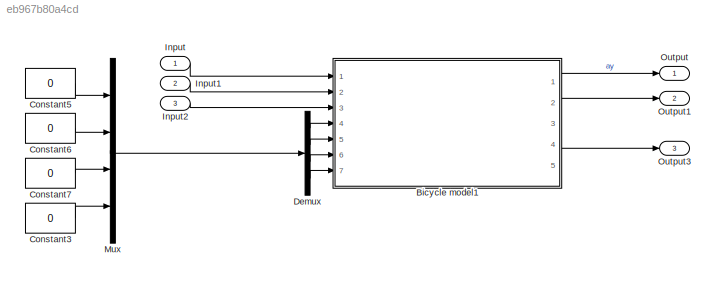
MODEL slx_eb967b80a4cd
KIND model
CONFIG AbsTol = auto
CONFIG EnableMultiTasking = off
CONFIG FixedStep = auto
CONFIG MaxStep = auto
CONFIG MinStep = auto
CONFIG RelTol = 1e-3
CONFIG SampleTimeConstraint = Unconstrained
CONFIG SolverName = VariableStepAuto
CONFIG StartTime = 0.0
CONFIG StopTime = 10
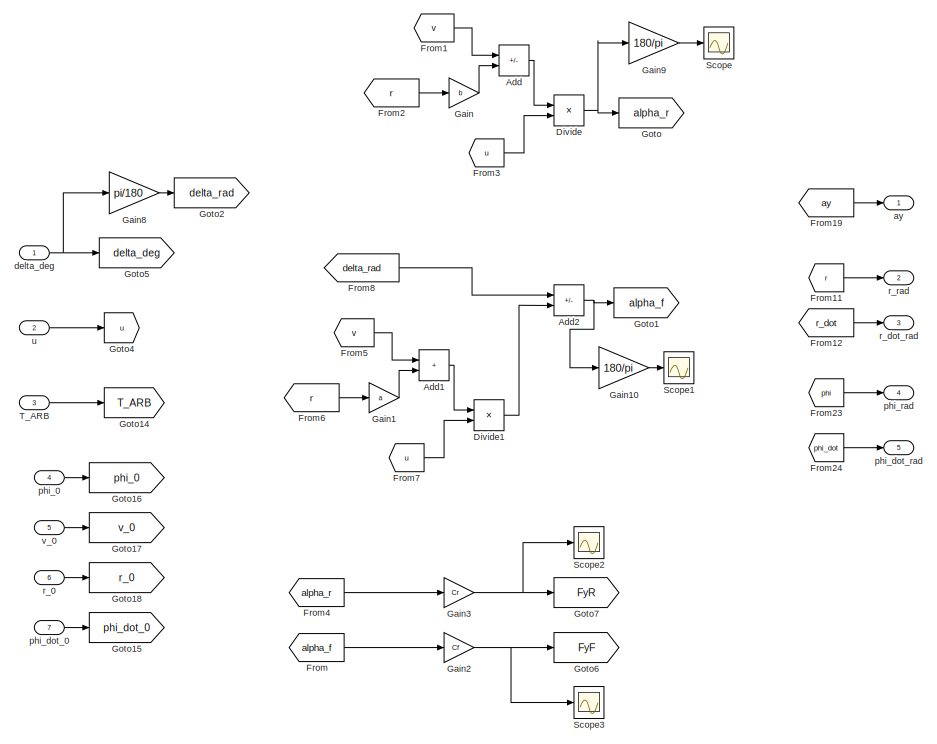
[diagram: Bicycle model1 - part 1/2, top center region]
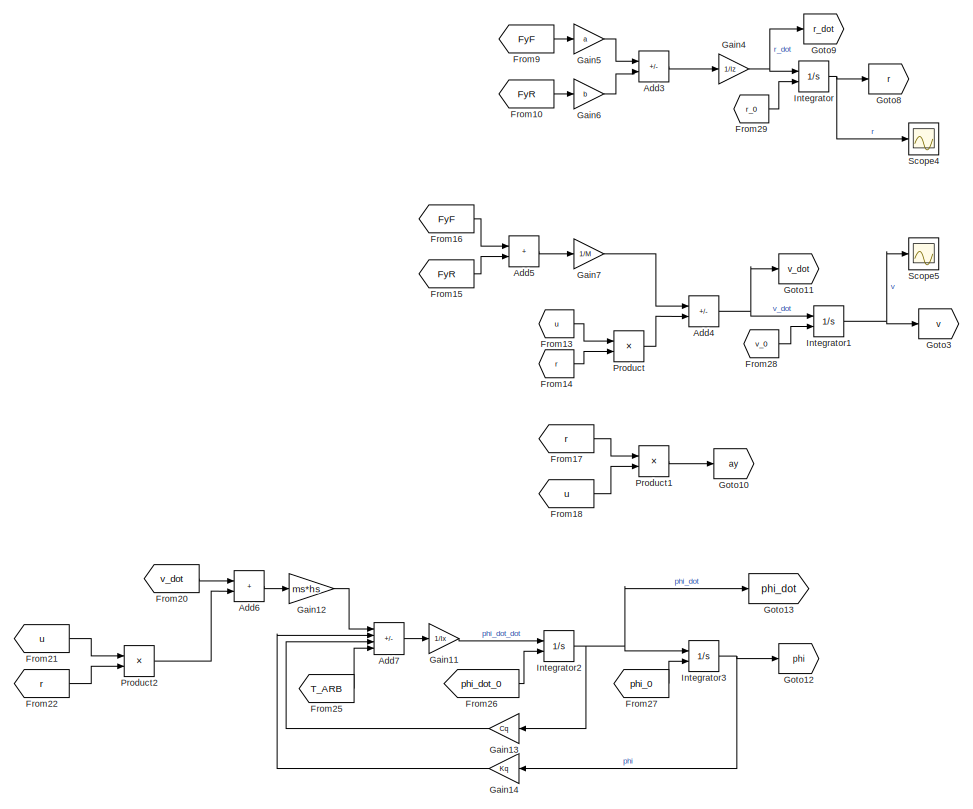
[diagram: Bicycle model1 - part 2/2, bottom center region]
BLOCK [SubSystem] Bicycle model1
  Ports = [7, 5]
  RequestExecContextInheritance = off
BLOCK [Sum] Bicycle model1/Add
  IconShape = rectangular
  Inputs = -+
  Ports = [2, 1]
BLOCK [Sum] Bicycle model1/Add1
  IconShape = rectangular
  Ports = [2, 1]
BLOCK [Sum] Bicycle model1/Add2
  IconShape = rectangular
  Inputs = +-
  Ports = [2, 1]
BLOCK [Sum] Bicycle model1/Add3
  IconShape = rectangular
  Inputs = +-
  Ports = [2, 1]
BLOCK [Sum] Bicycle model1/Add4
  IconShape = rectangular
  Inputs = +-
  Ports = [2, 1]
BLOCK [Sum] Bicycle model1/Add5
  IconShape = rectangular
  Ports = [2, 1]
BLOCK [Sum] Bicycle model1/Add6
  IconShape = rectangular
  Ports = [2, 1]
BLOCK [Sum] Bicycle model1/Add7
  IconShape = rectangular
  Inputs = +---
  Ports = [4, 1]
BLOCK [Product] Bicycle model1/Divide
  Inputs = */
  Ports = [2, 1]
BLOCK [Product] Bicycle model1/Divide1
  Inputs = */
  Ports = [2, 1]
BLOCK [From] Bicycle model1/From
  GotoTag = alpha_f
BLOCK [From] Bicycle model1/From1
  GotoTag = v
BLOCK [From] Bicycle model1/From10
  GotoTag = FyR
BLOCK [From] Bicycle model1/From11
  GotoTag = r
BLOCK [From] Bicycle model1/From12
  GotoTag = r_dot
BLOCK [From] Bicycle model1/From13
  GotoTag = u
BLOCK [From] Bicycle model1/From14
  GotoTag = r
BLOCK [From] Bicycle model1/From15
  GotoTag = FyR
BLOCK [From] Bicycle model1/From16
  GotoTag = FyF
BLOCK [From] Bicycle model1/From17
  GotoTag = r
BLOCK [From] Bicycle model1/From18
  GotoTag = u
BLOCK [From] Bicycle model1/From19
  GotoTag = ay
BLOCK [From] Bicycle model1/From2
  GotoTag = r
BLOCK [From] Bicycle model1/From20
  GotoTag = v_dot
BLOCK [From] Bicycle model1/From21
  GotoTag = u
BLOCK [From] Bicycle model1/From22
  GotoTag = r
BLOCK [From] Bicycle model1/From23
  GotoTag = phi
BLOCK [From] Bicycle model1/From24
  GotoTag = phi_dot
BLOCK [From] Bicycle model1/From25
  GotoTag = T_ARB
BLOCK [From] Bicycle model1/From26
  GotoTag = phi_dot_0
BLOCK [From] Bicycle model1/From27
  GotoTag = phi_0
BLOCK [From] Bicycle model1/From28
  GotoTag = v_0
BLOCK [From] Bicycle model1/From29
  GotoTag = r_0
BLOCK [From] Bicycle model1/From3
  GotoTag = u
BLOCK [From] Bicycle model1/From4
  GotoTag = alpha_r
BLOCK [From] Bicycle model1/From5
  GotoTag = v
BLOCK [From] Bicycle model1/From6
  GotoTag = r
BLOCK [From] Bicycle model1/From7
  GotoTag = u
BLOCK [From] Bicycle model1/From8
  GotoTag = delta_rad
BLOCK [From] Bicycle model1/From9
  GotoTag = FyF
BLOCK [Gain] Bicycle model1/Gain
  Gain = b
BLOCK [Gain] Bicycle model1/Gain1
  Gain = a
BLOCK [Gain] Bicycle model1/Gain10
  Gain = 180/pi
BLOCK [Gain] Bicycle model1/Gain11
  Gain = 1/Ix
BLOCK [Gain] Bicycle model1/Gain12
  Gain = ms*hs
BLOCK [Gain] Bicycle model1/Gain13
  Gain = Cq
  NameLocation = top
BLOCK [Gain] Bicycle model1/Gain14
  Gain = Kq
  NameLocation = top
BLOCK [Gain] Bicycle model1/Gain2
  Gain = Cf
BLOCK [Gain] Bicycle model1/Gain3
  Gain = Cr
BLOCK [Gain] Bicycle model1/Gain4
  Gain = 1/Iz
BLOCK [Gain] Bicycle model1/Gain5
  Gain = a
BLOCK [Gain] Bicycle model1/Gain6
  Gain = b
BLOCK [Gain] Bicycle model1/Gain7
  Gain = 1/M
BLOCK [Gain] Bicycle model1/Gain8
  Gain = pi/180
BLOCK [Gain] Bicycle model1/Gain9
  Gain = 180/pi
BLOCK [Goto] Bicycle model1/Goto
  GotoTag = alpha_r
BLOCK [Goto] Bicycle model1/Goto1
  GotoTag = alpha_f
BLOCK [Goto] Bicycle model1/Goto10
  GotoTag = ay
BLOCK [Goto] Bicycle model1/Goto11
  GotoTag = v_dot
BLOCK [Goto] Bicycle model1/Goto12
  GotoTag = phi
BLOCK [Goto] Bicycle model1/Goto13
  GotoTag = phi_dot
BLOCK [Goto] Bicycle model1/Goto14
  GotoTag = T_ARB
BLOCK [Goto] Bicycle model1/Goto15
  GotoTag = phi_dot_0
BLOCK [Goto] Bicycle model1/Goto16
  GotoTag = phi_0
BLOCK [Goto] Bicycle model1/Goto17
  GotoTag = v_0
BLOCK [Goto] Bicycle model1/Goto18
  GotoTag = r_0
BLOCK [Goto] Bicycle model1/Goto2
  GotoTag = delta_rad
BLOCK [Goto] Bicycle model1/Goto3
  GotoTag = v
BLOCK [Goto] Bicycle model1/Goto4
  GotoTag = u
BLOCK [Goto] Bicycle model1/Goto5
  Commented = on
  GotoTag = delta_deg
BLOCK [Goto] Bicycle model1/Goto6
  GotoTag = FyF
BLOCK [Goto] Bicycle model1/Goto7
  GotoTag = FyR
BLOCK [Goto] Bicycle model1/Goto8
  GotoTag = r
BLOCK [Goto] Bicycle model1/Goto9
  GotoTag = r_dot
BLOCK [Integrator] Bicycle model1/Integrator
  InitialConditionSource = external
  Ports = [2, 1]
BLOCK [Integrator] Bicycle model1/Integrator1
  InitialConditionSource = external
  Ports = [2, 1]
BLOCK [Integrator] Bicycle model1/Integrator2
  InitialConditionSource = external
  Ports = [2, 1]
BLOCK [Integrator] Bicycle model1/Integrator3
  InitialConditionSource = external
  Ports = [2, 1]
BLOCK [Product] Bicycle model1/Product
  Ports = [2, 1]
BLOCK [Product] Bicycle model1/Product1
  Ports = [2, 1]
BLOCK [Product] Bicycle model1/Product2
  Ports = [2, 1]
BLOCK [Scope] Bicycle model1/Scope
  Floating = off
  NumInputPorts = 1
  Ports = [1]
  ScopeSpecificationString = Simulink.scopes.TimeScopeBlockCfg('CurrentConfiguration', extmgr.ConfigurationSet(extmgr.Configuration('Core','General UI',true,'FigureColor',[1 1 1]),extmgr.Configuration('Core','Source UI',true),extmgr.Configuration('Sources','WiredSimulink',true,'DataLoggingVariableName','ScopeData2'),extmgr.Configuration('Visuals','Time Domain',true,'SerializedDisplays',{struct('MinYLimReal','-26.98488','MaxYL...<+1555ch>
BLOCK [Scope] Bicycle model1/Scope1
  Floating = off
  NumInputPorts = 1
  Ports = [1]
  ScopeSpecificationString = Simulink.scopes.TimeScopeBlockCfg('CurrentConfiguration', extmgr.ConfigurationSet(extmgr.Configuration('Core','General UI',true,'FigureColor',[1 1 1]),extmgr.Configuration('Core','Source UI',true),extmgr.Configuration('Sources','WiredSimulink',true,'DataLoggingVariableName','ScopeData3'),extmgr.Configuration('Visuals','Time Domain',true,'SerializedDisplays',{struct('MinYLimReal','-30.65544','MaxYL...<+1542ch>
BLOCK [Scope] Bicycle model1/Scope2
  Floating = off
  NumInputPorts = 1
  Ports = [1]
  ScopeSpecificationString = Simulink.scopes.TimeScopeBlockCfg('CurrentConfiguration', extmgr.ConfigurationSet(extmgr.Configuration('Core','General UI',true,'FigureColor',[1 1 1]),extmgr.Configuration('Core','Source UI',true),extmgr.Configuration('Sources','WiredSimulink',true,'DataLoggingVariableName','ScopeData4'),extmgr.Configuration('Visuals','Time Domain',true,'SerializedDisplays',{struct('MinYLimReal','-2248.73985','Max...<+1577ch>
BLOCK [Scope] Bicycle model1/Scope3
  Floating = off
  NumInputPorts = 1
  Ports = [1]
  ScopeSpecificationString = Simulink.scopes.TimeScopeBlockCfg('CurrentConfiguration', extmgr.ConfigurationSet(extmgr.Configuration('Core','General UI',true,'FigureColor',[1 1 1]),extmgr.Configuration('Core','Source UI',true),extmgr.Configuration('Sources','WiredSimulink',true,'DataLoggingVariableName','ScopeData5'),extmgr.Configuration('Visuals','Time Domain',true,'SerializedDisplays',{struct('MinYLimReal','-2554.61988','Max...<+1577ch>
BLOCK [Scope] Bicycle model1/Scope4
  Floating = off
  NumInputPorts = 1
  Ports = [1]
  ScopeSpecificationString = Simulink.scopes.TimeScopeBlockCfg('CurrentConfiguration', extmgr.ConfigurationSet(extmgr.Configuration('Core','General UI',true,'FigureColor',[1 1 1]),extmgr.Configuration('Core','Source UI',true),extmgr.Configuration('Sources','WiredSimulink',true,'DataLoggingVariableName','ScopeData6'),extmgr.Configuration('Visuals','Time Domain',true,'SerializedDisplays',{struct('MinYLimReal','0.767286','MaxYLi...<+1880ch>
BLOCK [Scope] Bicycle model1/Scope5
  Floating = off
  NumInputPorts = 1
  Ports = [1]
  ScopeSpecificationString = Simulink.scopes.TimeScopeBlockCfg('CurrentConfiguration', extmgr.ConfigurationSet(extmgr.Configuration('Core','General UI',true,'FigureColor',[1 1 1]),extmgr.Configuration('Core','Source UI',true),extmgr.Configuration('Sources','WiredSimulink',true,'DataLoggingVariableName','ScopeData7'),extmgr.Configuration('Visuals','Time Domain',true,'SerializedDisplays',{struct('MinYLimReal','-7.10739','MaxYLi...<+1549ch>
BLOCK [Inport] Bicycle model1/T_ARB
  Port = 3
BLOCK [Outport] Bicycle model1/ay
BLOCK [Inport] Bicycle model1/delta_deg
BLOCK [Inport] Bicycle model1/phi_0
  Port = 4
BLOCK [Inport] Bicycle model1/phi_dot_0
  Port = 7
BLOCK [Outport] Bicycle model1/phi_dot_rad
  Port = 5
BLOCK [Outport] Bicycle model1/phi_rad
  Port = 4
BLOCK [Inport] Bicycle model1/r_0
  Port = 6
BLOCK [Outport] Bicycle model1/r_dot_rad
  Port = 3
BLOCK [Outport] Bicycle model1/r_rad
  Port = 2
BLOCK [Inport] Bicycle model1/u
  Port = 2
BLOCK [Inport] Bicycle model1/v_0
  Port = 5
BLOCK [Constant] Constant3
  Value = 0
BLOCK [Constant] Constant5
  Value = 0
BLOCK [Constant] Constant6
  Value = 0
BLOCK [Constant] Constant7
  Value = 0
BLOCK [Demux] Demux
  Ports = [1, 4]
BLOCK [Inport] Input
BLOCK [Inport] Input1
  Port = 2
BLOCK [Inport] Input2
  Port = 3
BLOCK [Mux] Mux
  DisplayOption = bar
  Ports = [4, 1]
BLOCK [Outport] Output
BLOCK [Outport] Output1
  Port = 2
BLOCK [Outport] Output3
  Port = 3
LINE Bicycle model1/Add1:1 -> Bicycle model1/Divide1:1
NET Bicycle model1/Add2:1 -> Bicycle model1/Gain10:1, Bicycle model1/Goto1:1
LINE Bicycle model1/Add3:1 -> Bicycle model1/Gain4:1
NET Bicycle model1/Add4:1 -> Bicycle model1/Goto11:1, Bicycle model1/Integrator1:1
LINE Bicycle model1/Add5:1 -> Bicycle model1/Gain7:1
LINE Bicycle model1/Add6:1 -> Bicycle model1/Gain12:1
LINE Bicycle model1/Add7:1 -> Bicycle model1/Gain11:1
LINE Bicycle model1/Add:1 -> Bicycle model1/Divide:1
LINE Bicycle model1/Divide1:1 -> Bicycle model1/Add2:2
NET Bicycle model1/Divide:1 -> Bicycle model1/Gain9:1, Bicycle model1/Goto:1
LINE Bicycle model1/From10:1 -> Bicycle model1/Gain6:1
LINE Bicycle model1/From11:1 -> Bicycle model1/r_rad:1
LINE Bicycle model1/From12:1 -> Bicycle model1/r_dot_rad:1
LINE Bicycle model1/From13:1 -> Bicycle model1/Product:1
LINE Bicycle model1/From14:1 -> Bicycle model1/Product:2
LINE Bicycle model1/From15:1 -> Bicycle model1/Add5:2
LINE Bicycle model1/From16:1 -> Bicycle model1/Add5:1
LINE Bicycle model1/From17:1 -> Bicycle model1/Product1:1
LINE Bicycle model1/From18:1 -> Bicycle model1/Product1:2
LINE Bicycle model1/From19:1 -> Bicycle model1/ay:1
LINE Bicycle model1/From1:1 -> Bicycle model1/Add:1
LINE Bicycle model1/From20:1 -> Bicycle model1/Add6:1
LINE Bicycle model1/From21:1 -> Bicycle model1/Product2:1
LINE Bicycle model1/From22:1 -> Bicycle model1/Product2:2
LINE Bicycle model1/From23:1 -> Bicycle model1/phi_rad:1
LINE Bicycle model1/From24:1 -> Bicycle model1/phi_dot_rad:1
LINE Bicycle model1/From25:1 -> Bicycle model1/Add7:4
LINE Bicycle model1/From26:1 -> Bicycle model1/Integrator2:2
LINE Bicycle model1/From27:1 -> Bicycle model1/Integrator3:2
LINE Bicycle model1/From28:1 -> Bicycle model1/Integrator1:2
LINE Bicycle model1/From29:1 -> Bicycle model1/Integrator:2
LINE Bicycle model1/From2:1 -> Bicycle model1/Gain:1
LINE Bicycle model1/From3:1 -> Bicycle model1/Divide:2
LINE Bicycle model1/From4:1 -> Bicycle model1/Gain3:1
LINE Bicycle model1/From5:1 -> Bicycle model1/Add1:1
LINE Bicycle model1/From6:1 -> Bicycle model1/Gain1:1
LINE Bicycle model1/From7:1 -> Bicycle model1/Divide1:2
LINE Bicycle model1/From8:1 -> Bicycle model1/Add2:1
LINE Bicycle model1/From9:1 -> Bicycle model1/Gain5:1
LINE Bicycle model1/From:1 -> Bicycle model1/Gain2:1
LINE Bicycle model1/Gain10:1 -> Bicycle model1/Scope1:1
LINE Bicycle model1/Gain11:1 -> Bicycle model1/Integrator2:1
LINE Bicycle model1/Gain12:1 -> Bicycle model1/Add7:1
LINE Bicycle model1/Gain13:1 -> Bicycle model1/Add7:3
LINE Bicycle model1/Gain14:1 -> Bicycle model1/Add7:2
LINE Bicycle model1/Gain1:1 -> Bicycle model1/Add1:2
NET Bicycle model1/Gain2:1 -> Bicycle model1/Goto6:1, Bicycle model1/Scope3:1
NET Bicycle model1/Gain3:1 -> Bicycle model1/Goto7:1, Bicycle model1/Scope2:1
NET Bicycle model1/Gain4:1 -> Bicycle model1/Goto9:1, Bicycle model1/Integrator:1
LINE Bicycle model1/Gain5:1 -> Bicycle model1/Add3:1
LINE Bicycle model1/Gain6:1 -> Bicycle model1/Add3:2
LINE Bicycle model1/Gain7:1 -> Bicycle model1/Add4:1
LINE Bicycle model1/Gain8:1 -> Bicycle model1/Goto2:1
LINE Bicycle model1/Gain9:1 -> Bicycle model1/Scope:1
LINE Bicycle model1/Gain:1 -> Bicycle model1/Add:2
NET Bicycle model1/Integrator1:1 -> Bicycle model1/Goto3:1, Bicycle model1/Scope5:1
NET Bicycle model1/Integrator2:1 -> Bicycle model1/Gain13:1, Bicycle model1/Goto13:1, Bicycle model1/Integrator3:1
NET Bicycle model1/Integrator3:1 -> Bicycle model1/Gain14:1, Bicycle model1/Goto12:1
NET Bicycle model1/Integrator:1 -> Bicycle model1/Goto8:1, Bicycle model1/Scope4:1
LINE Bicycle model1/Product1:1 -> Bicycle model1/Goto10:1
LINE Bicycle model1/Product2:1 -> Bicycle model1/Add6:2
LINE Bicycle model1/Product:1 -> Bicycle model1/Add4:2
LINE Bicycle model1/T_ARB:1 -> Bicycle model1/Goto14:1
NET Bicycle model1/delta_deg:1 -> Bicycle model1/Gain8:1, Bicycle model1/Goto5:1
LINE Bicycle model1/phi_0:1 -> Bicycle model1/Goto16:1
LINE Bicycle model1/phi_dot_0:1 -> Bicycle model1/Goto15:1
LINE Bicycle model1/r_0:1 -> Bicycle model1/Goto18:1
LINE Bicycle model1/u:1 -> Bicycle model1/Goto4:1
LINE Bicycle model1/v_0:1 -> Bicycle model1/Goto17:1
LINE Bicycle model1:1 -> Output:1
LINE Bicycle model1:2 -> Output1:1
LINE Bicycle model1:4 -> Output3:1
LINE Constant3:1 -> Mux:4
LINE Constant5:1 -> Mux:1
LINE Constant6:1 -> Mux:2
LINE Constant7:1 -> Mux:3
LINE Demux:1 -> Bicycle model1:4
LINE Demux:2 -> Bicycle model1:5
LINE Demux:3 -> Bicycle model1:6
LINE Demux:4 -> Bicycle model1:7
LINE Input1:1 -> Bicycle model1:2
LINE Input2:1 -> Bicycle model1:3
LINE Input:1 -> Bicycle model1:1
LINE Mux:1 -> Demux:1
note: NET lines group one-source signal fan-out (src -> all destinations, sorted); 1:1 wires keep LINE
